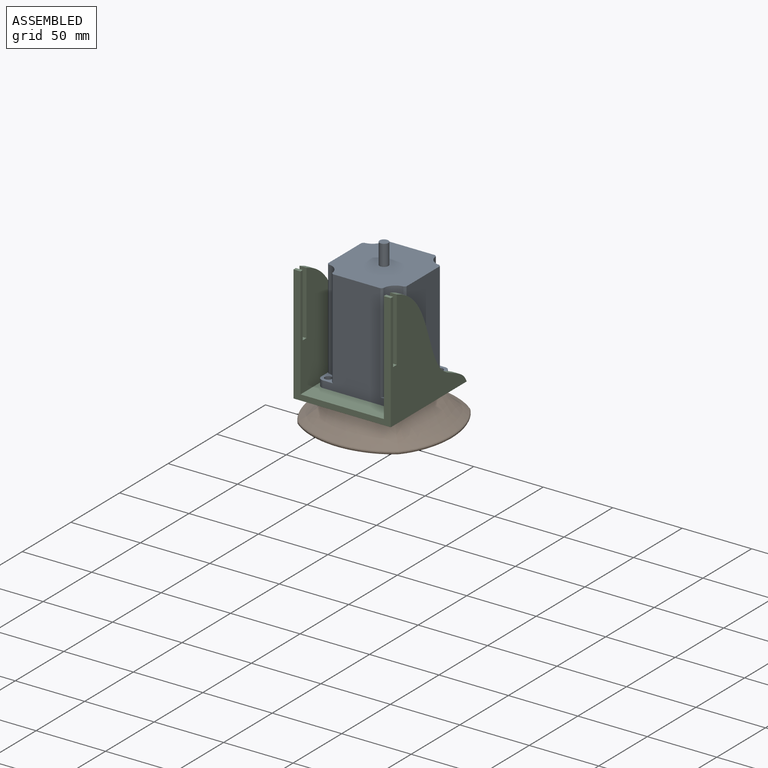
[diagram: assembled view]
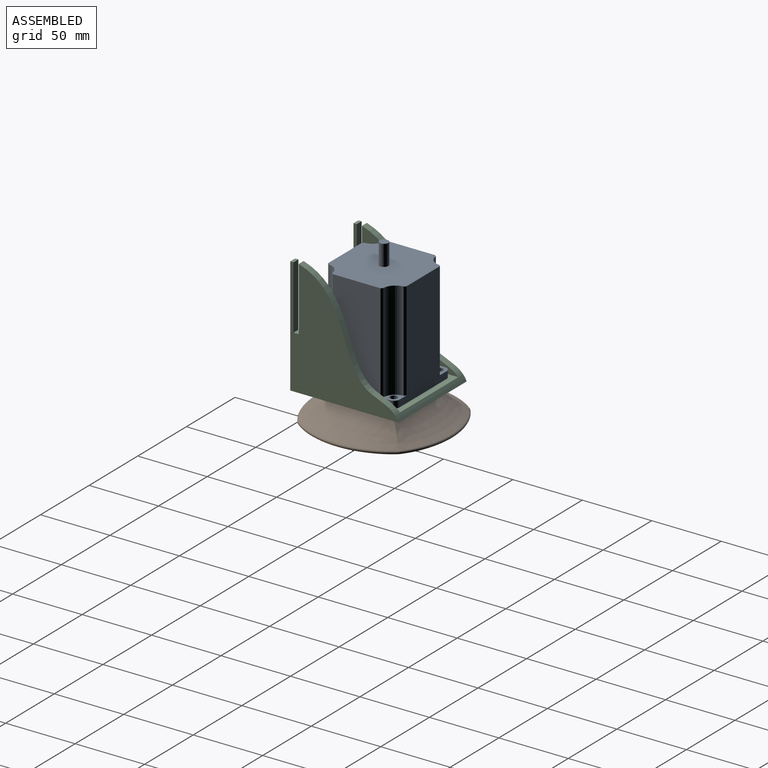
[diagram: assembled view, second angle]
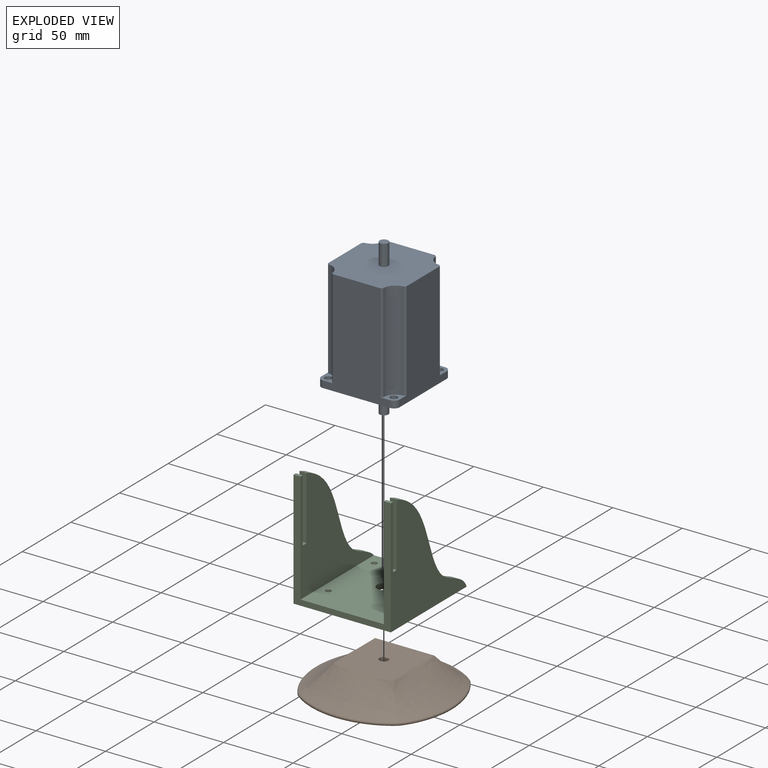
[diagram: exploded view]
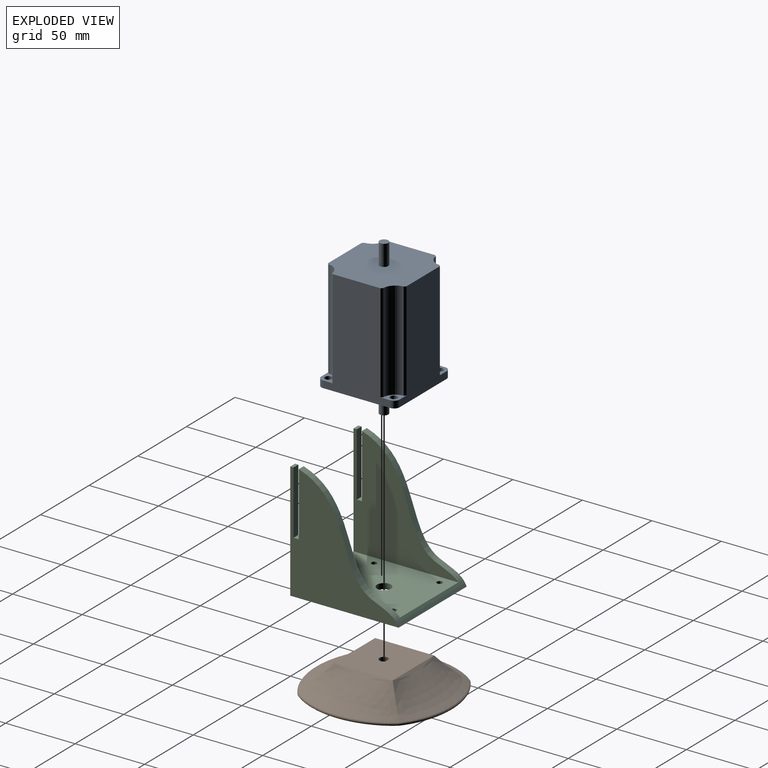
[diagram: exploded view, second angle]
ASSEMBLY  parts=3 mates=3
PART A: 36 faces, bbox 56.4x56.4x111.6 mm
  f0: cylinder r=2.55mm len=5.1mm, axis (0,0,-1), area 80.1mm2, adj f29,f31
  f1: cylinder r=2.55mm len=5.1mm, axis (0,0,-1), area 80.1mm2, adj f26,f29
  f2: cylinder r=4mm len=5mm, axis (0,0,1), area 31.4mm2, adj f29,f30,f32,f35
  f3: cylinder r=4mm len=5mm, axis (0,0,1), area 31.4mm2, adj f29,f30,f31,f33
  f4: cylinder r=4mm len=5mm, axis (0,0,1), area 31.4mm2, adj f27,f28,f29,f35
  f5: cylinder r=4mm len=5mm, axis (0,0,1), area 31.4mm2, adj f26,f27,f29,f33
  f6: cylinder r=19.05mm len=38.1mm, axis (0,0,1), area 191.5mm2, adj f25,f29
  f7: cylinder r=3.17mm len=19mm, axis (0,0,1), area 379mm2, adj f24,f25
  f8: cylinder r=3.17mm len=15mm, axis (0,0,-1), area 299.2mm2, adj f23,f34
  f9: cylinder r=2.55mm len=5.1mm, axis (0,0,-1), area 80.1mm2, adj f29,f32
  f10: cylinder r=2.55mm len=5.1mm, axis (0,0,-1), area 80.1mm2, adj f28,f29
  f11: cylinder r=9mm len=71mm, axis (0,0,1), area 946.8mm2, adj f12,f13,f28,f34
  f12: plane 71x1.2mm, normal (0.71,0.71,0), area 121mm2, adj f11,f27,f28,f34
  f13: plane 71x1.2mm, normal (0.71,0.71,0), area 121mm2, adj f11,f28,f34,f35
  f14: cylinder r=9mm len=71mm, axis (0,0,1), area 946.8mm2, adj f15,f16,f32,f34
  f15: plane 71x1.2mm, normal (0.71,-0.71,0), area 121mm2, adj f14,f32,f34,f35
  f16: plane 71x1.2mm, normal (0.71,-0.71,0), area 121mm2, adj f14,f30,f32,f34
  f17: cylinder r=9mm len=71mm, axis (0,0,1), area 946.8mm2, adj f18,f19,f31,f34
  f18: plane 71x1.2mm, normal (-0.71,-0.71,0), area 121mm2, adj f17,f30,f31,f34
  f19: plane 71x1.2mm, normal (-0.71,-0.71,0), area 121mm2, adj f17,f31,f33,f34
  f20: cylinder r=9mm len=71mm, axis (0,0,1), area 946.8mm2, adj f21,f22,f26,f34
  f21: plane 71x1.2mm, normal (-0.71,0.71,0), area 121mm2, adj f20,f26,f33,f34
  f22: plane 71x1.2mm, normal (-0.71,0.71,0), area 121mm2, adj f20,f26,f27,f34
  f23: plane 6.35x6.35mm, normal (0,0,-1), area 31.7mm2, adj f8
  f24: plane 6.35x6.35mm, normal (0,0,1), area 31.7mm2, adj f7
  f25: plane 38.1x38.1mm, normal (0,0,1), area 1108.4mm2, adj f6,f7
  f26: plane 11x11mm, normal (0,0,-1), area 56.3mm2, adj f1,f5,f20,f21,f22,f27,f33
  f27: plane 76x48.4mm, normal (0,1,0), area 2684.4mm2, adj f4,f5,f12,f22,f26,f28,f29,f34
  f28: plane 11x11mm, normal (0,0,-1), area 56.3mm2, adj f4,f10,f11,f12,f13,f27,f35
  f29: plane 56.4x56.4mm, normal (0,0,1), area 1945.4mm2, adj f0,f1,f2,f3,f4,f5,f6,f9
  f30: plane 76x48.4mm, normal (0,-1,0), area 2684.4mm2, adj f2,f3,f16,f18,f29,f31,f32,f34
  f31: plane 11x11mm, normal (0,0,-1), area 56.3mm2, adj f0,f3,f17,f18,f19,f30,f33
  f32: plane 11x11mm, normal (0,0,-1), area 56.3mm2, adj f2,f9,f14,f15,f16,f30,f35
  f33: plane 76x48.4mm, normal (-1,0,0), area 2684.4mm2, adj f3,f5,f19,f21,f26,f29,f31,f34
  f34: plane 56.4x56.4mm, normal (0,0,-1), area 2828.6mm2, adj f8,f11,f12,f13,f14,f15,f16,f17
  f35: plane 76x48.4mm, normal (1,0,0), area 2684.4mm2, adj f2,f4,f13,f15,f28,f29,f32,f34
PART B: 13 faces, bbox 120x120x20 mm
  f0: plane 95.73x95.71mm, normal (0,0,-1), area 7481.2mm2, adj f9,f10,f11,f12
  f1: plane 42.45x42.4mm, normal (0,0,1), area 1769.6mm2, adj f2,f3,f4,f5,f6,f7
  f2: bspline ~84.85x38.78mm, area 1791.8mm2, adj f1,f3,f5,f11
  f3: bspline ~84.85x38.8mm, area 1793.4mm2, adj f1,f2,f4,f9
  f4: bspline ~84.85x38.78mm, area 1791.8mm2, adj f1,f3,f5,f10
  f5: bspline ~84.85x38.8mm, area 1793.4mm2, adj f1,f2,f4,f12
  f6: plane 12.7x4.38mm, normal (0,-1,0), area 55.6mm2, adj f1,f7,f8
  f7: cylinder r=3.24mm len=12.7mm, axis (0,0,1), area 197.3mm2, adj f1,f6,f8
  f8: plane 6.48x5.62mm, normal (0,0,1), area 30.4mm2, adj f6,f7
  f9: bspline ~79.25x19.53mm, area 271.3mm2, adj f0,f3,f10,f11
  f10: bspline ~79.08x19.4mm, area 271.3mm2, adj f0,f4,f9,f12
  f11: bspline ~79.08x19.4mm, area 271.3mm2, adj f0,f2,f9,f12
  f12: bspline ~79.25x19.53mm, area 271.3mm2, adj f0,f5,f10,f11
PART C: 21 faces, bbox 70x78x84 mm
  f0: plane 5x2.36mm, normal (0,0,1), area 11.8mm2, adj f2,f3,f13,f18
  f1: plane 5x2.36mm, normal (0,0,1), area 11.8mm2, adj f4,f6,f13,f17
  f2: plane 84x78mm, normal (1,0,0), area 3317.5mm2, adj f0,f8,f13,f14,f18,f19,f20
  f3: plane 81.12x76.64mm, normal (-1,0,0), area 3009.6mm2, adj f0,f5,f13,f14,f18,f19,f20
  f4: plane 81.12x76.64mm, normal (1,0,0), area 3009.6mm2, adj f1,f5,f13,f14,f15,f16,f17
  f5: plane 75.51x60mm, normal (0,0,1), area 4401.9mm2, adj f3,f4,f7,f9,f10,f11,f12,f13
  f6: plane 84x78mm, normal (-1,0,0), area 3316.8mm2, adj f1,f8,f13,f14,f15,f16,f17
  f7: cylinder r=5mm len=10mm, axis (0,0,1), area 125.7mm2, adj f5,f8
  f8: plane 78x70mm, normal (0,0,-1), area 5331.2mm2, adj f2,f6,f7,f9,f10,f11,f12,f13
  f9: cylinder r=2mm len=4mm, axis (0,0,1), area 50.3mm2, adj f5,f8
  f10: cylinder r=2mm len=4mm, axis (0,0,1), area 50.3mm2, adj f5,f8
  f11: cylinder r=2mm len=4mm, axis (0,0,1), area 50.3mm2, adj f5,f8
  f12: cylinder r=2mm len=4mm, axis (0,0,1), area 50.3mm2, adj f5,f8
  f13: plane 84x70mm, normal (0,-1,0), area 1080mm2, adj f0,f1,f2,f3,f4,f5,f6,f8
  f14: extruded ~84x71.83mm, area 1441.4mm2, adj f2,f3,f4,f5,f6,f8,f16,f20
  f15: plane 5x3.81mm, normal (0,0,1), area 19mm2, adj f4,f6,f16,f17
  f16: plane 45.72x5mm, normal (0,-1,0), area 228.6mm2, adj f4,f6,f14,f15
  f17: plane 45.72x5mm, normal (0,1,0), area 228.6mm2, adj f1,f4,f6,f15
  f18: plane 45.72x5mm, normal (0,1,0), area 228.6mm2, adj f0,f2,f3,f19
  f19: plane 5x3.81mm, normal (0,0,1), area 19.1mm2, adj f2,f3,f18,f20
  f20: plane 45.72x5mm, normal (0,-1,0), area 228.6mm2, adj f2,f3,f14,f19
PLACE A rot(axis=(0,1,0),180deg) t=(-8.01,0.77,93.99)mm
PLACE B t=(-11.21,9.52,-6.01)mm fixed
PLACE C t=(-11.21,9.52,17.99)mm
MATE planar A.f29 <-> C.f5  axis (0,0,-1) through (-11.21,-18.68,17.99)mm
MATE planar C.f8 <-> B.f1  axis (0,0,-1) through (-11.21,5.43,13.99)mm
MATE cylindrical A.f6 <-> C.f7  axis (0,0,-1) through (-11.21,9.52,6.89)mm
